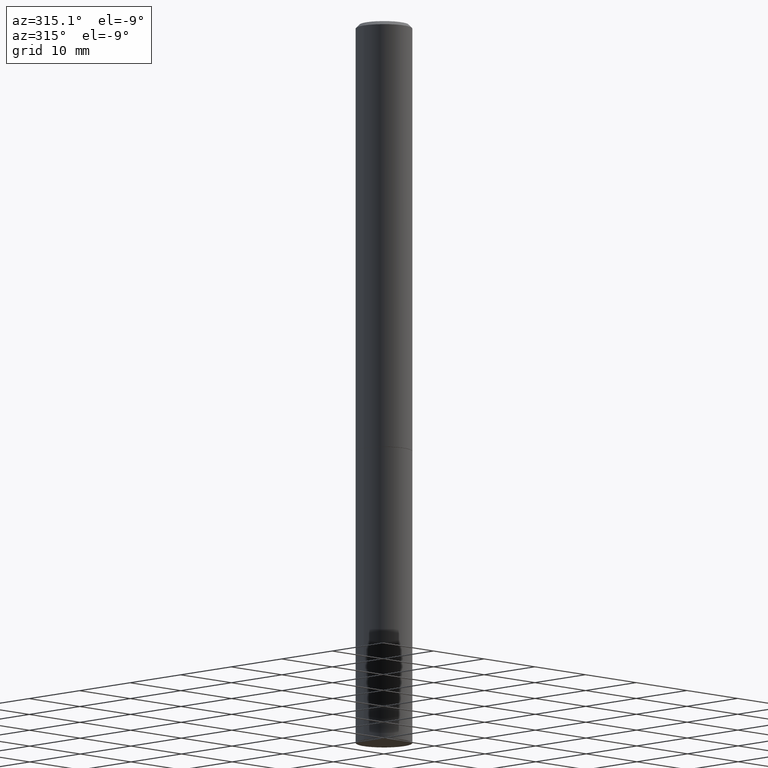
[diagram: clean part render]
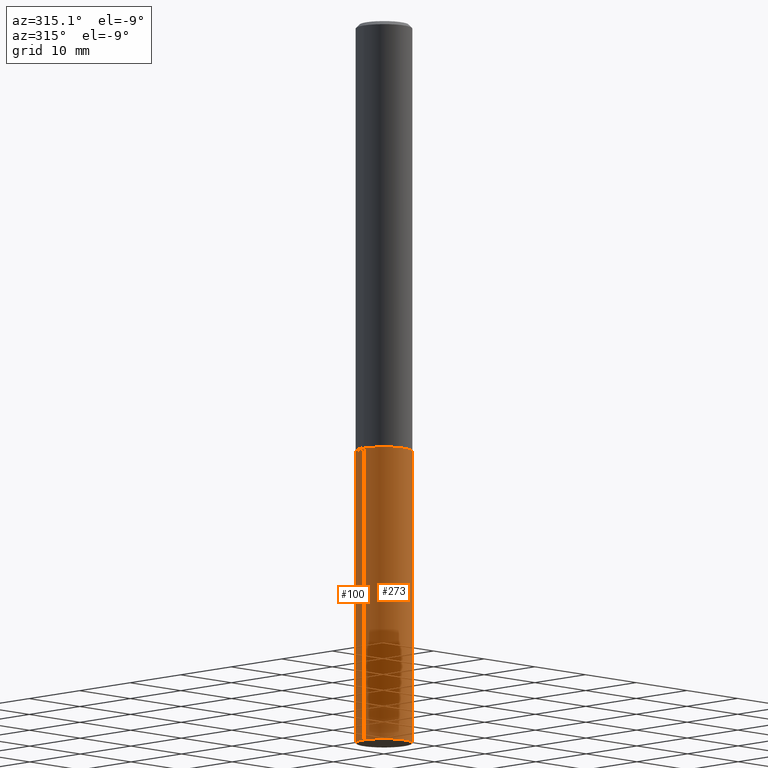
[diagram: same view with one multi-face feature highlighted, each face labeled with its STEP entity id]
A machine part, auxiliary view. The highlighted faces form ONE feature: a constant-radius fillet chain: 2 tangent blend faces with common blend radius 3.9688 mm. The faces share edges in the B-rep.
Their STEP definitions:
[1] entity #273 (Cylinder):
#19 = ORIENTED_EDGE ( 'NONE', *, *, #77, .T. ) ;
#22 = DIRECTION ( 'NONE',  ( 1.000000000000000000, -6.982962677686266711E-15, 4.876176775795936353E-29 ) ) ;
#30 = CARTESIAN_POINT ( 'NONE',  ( -0.1562500000000000000, 1.110223024625156540E-15, -7.685836078523291160E-30 ) ) ;
#41 = CARTESIAN_POINT ( 'NONE',  ( 0.000000000000000000, 0.000000000000000000, 0.000000000000000000 ) ) ;
#47 = DIRECTION ( 'NONE',  ( 1.000000000000000000, -6.982962677686262766E-15, 0.000000000000000000 ) ) ;
#67 = CARTESIAN_POINT ( 'NONE',  ( 0.1562499999999997224, -1.503787816752438098E-14, -4.000000000000000000 ) ) ;
#71 = VECTOR ( 'NONE', #167, 39.37007874015748143 ) ;
#77 = EDGE_CURVE ( 'NONE', #350, #175, #328, .T. ) ;
#79 = AXIS2_PLACEMENT_3D ( 'NONE', #112, #236, #47 ) ;
#82 = CARTESIAN_POINT ( 'NONE',  ( 9.781875224740546387E-29, -1.396592535537258233E-14, -4.000000000000000000 ) ) ;
#85 = AXIS2_PLACEMENT_3D ( 'NONE', #82, #347, #297 ) ;
#91 = CYLINDRICAL_SURFACE ( 'NONE', #129, 0.1562500000000000000 ) ;
#97 = ORIENTED_EDGE ( 'NONE', *, *, #345, .T. ) ;
#104 = ORIENTED_EDGE ( 'NONE', *, *, #381, .F. ) ;
#112 = CARTESIAN_POINT ( 'NONE',  ( 5.807988414689699417E-29, -8.292268179752470118E-15, -2.375000000000000000 ) ) ;
#113 = CARTESIAN_POINT ( 'NONE',  ( -0.1562500000000000000, -1.001887374293736968E-14, -2.375000000000000000 ) ) ;
#129 = AXIS2_PLACEMENT_3D ( 'NONE', #41, #166, #22 ) ;
#146 = DIRECTION ( 'NONE',  ( -2.445468806185136877E-29, 3.491481338843145188E-15, 1.000000000000000000 ) ) ;
#166 = DIRECTION ( 'NONE',  ( -2.445468806185136597E-29, 3.491481338843145583E-15, 1.000000000000000000 ) ) ;
#167 = DIRECTION ( 'NONE',  ( -2.445468806185136877E-29, 3.491481338843145188E-15, 1.000000000000000000 ) ) ;
#175 = VERTEX_POINT ( 'NONE', #67 ) ;
#200 = LINE ( 'NONE', #323, #71 ) ;
#206 = EDGE_CURVE ( 'NONE', #350, #367, #270, .T. ) ;
#215 = FACE_OUTER_BOUND ( 'NONE', #287, .T. ) ;
#236 = DIRECTION ( 'NONE',  ( -2.445468806185136597E-29, 3.491481338843145583E-15, 1.000000000000000000 ) ) ;
#262 = CARTESIAN_POINT ( 'NONE',  ( -0.1562499999999997224, -1.287483743698410395E-14, -4.000000000000000000 ) ) ;
#270 = LINE ( 'NONE', #30, #313 ) ;
#273 = ADVANCED_FACE ( 'NONE', ( #215 ), #91, .T. ) ;
#287 = EDGE_LOOP ( 'NONE', ( #319, #19, #97, #104 ) ) ;
#296 = CIRCLE ( 'NONE', #79, 0.1562500000000000000 ) ;
#297 = DIRECTION ( 'NONE',  ( 1.000000000000000000, -6.982962677686262766E-15, 0.000000000000000000 ) ) ;
#313 = VECTOR ( 'NONE', #146, 39.37007874015748143 ) ;
#319 = ORIENTED_EDGE ( 'NONE', *, *, #206, .F. ) ;
#323 = CARTESIAN_POINT ( 'NONE',  ( 0.1562500000000000000, -1.091087918388479174E-15, 7.619026212181150377E-30 ) ) ;
#328 = CIRCLE ( 'NONE', #85, 0.1562500000000000000 ) ;
#345 = EDGE_CURVE ( 'NONE', #175, #351, #200, .T. ) ;
#347 = DIRECTION ( 'NONE',  ( -2.445468806185136597E-29, 3.491481338843145583E-15, 1.000000000000000000 ) ) ;
#350 = VERTEX_POINT ( 'NONE', #262 ) ;
#351 = VERTEX_POINT ( 'NONE', #361 ) ;
#361 = CARTESIAN_POINT ( 'NONE',  ( 0.1562500000000000000, -9.383356098140948502E-15, -2.375000000000000000 ) ) ;
#367 = VERTEX_POINT ( 'NONE', #113 ) ;
#381 = EDGE_CURVE ( 'NONE', #367, #351, #296, .T. ) ;
[2] entity #100 (Cylinder):
#16 = DIRECTION ( 'NONE',  ( -2.445468806185136597E-29, 3.491481338843145583E-15, 1.000000000000000000 ) ) ;
#30 = CARTESIAN_POINT ( 'NONE',  ( -0.1562500000000000000, 1.110223024625156540E-15, -7.685836078523291160E-30 ) ) ;
#67 = CARTESIAN_POINT ( 'NONE',  ( 0.1562499999999997224, -1.503787816752438098E-14, -4.000000000000000000 ) ) ;
#71 = VECTOR ( 'NONE', #167, 39.37007874015748143 ) ;
#72 = CARTESIAN_POINT ( 'NONE',  ( 5.807988414689699417E-29, -8.292268179752470118E-15, -2.375000000000000000 ) ) ;
#78 = DIRECTION ( 'NONE',  ( 1.000000000000000000, -6.982962677686262766E-15, 0.000000000000000000 ) ) ;
#80 = FACE_OUTER_BOUND ( 'NONE', #94, .T. ) ;
#89 = ORIENTED_EDGE ( 'NONE', *, *, #281, .F. ) ;
#92 = CIRCLE ( 'NONE', #183, 0.1562500000000000000 ) ;
#94 = EDGE_LOOP ( 'NONE', ( #301, #279, #89, #147 ) ) ;
#99 = DIRECTION ( 'NONE',  ( 1.000000000000000000, -6.982962677686266711E-15, 4.876176775795936353E-29 ) ) ;
#100 = ADVANCED_FACE ( 'NONE', ( #80 ), #199, .T. ) ;
#113 = CARTESIAN_POINT ( 'NONE',  ( -0.1562500000000000000, -1.001887374293736968E-14, -2.375000000000000000 ) ) ;
#121 = DIRECTION ( 'NONE',  ( 1.000000000000000000, -6.982962677686262766E-15, 0.000000000000000000 ) ) ;
#146 = DIRECTION ( 'NONE',  ( -2.445468806185136877E-29, 3.491481338843145188E-15, 1.000000000000000000 ) ) ;
#147 = ORIENTED_EDGE ( 'NONE', *, *, #345, .F. ) ;
#150 = CIRCLE ( 'NONE', #205, 0.1562500000000000000 ) ;
#152 = DIRECTION ( 'NONE',  ( -2.445468806185136597E-29, 3.491481338843145583E-15, 1.000000000000000000 ) ) ;
#163 = CARTESIAN_POINT ( 'NONE',  ( 9.781875224740546387E-29, -1.396592535537258233E-14, -4.000000000000000000 ) ) ;
#167 = DIRECTION ( 'NONE',  ( -2.445468806185136877E-29, 3.491481338843145188E-15, 1.000000000000000000 ) ) ;
#175 = VERTEX_POINT ( 'NONE', #67 ) ;
#183 = AXIS2_PLACEMENT_3D ( 'NONE', #163, #16, #78 ) ;
#190 = DIRECTION ( 'NONE',  ( -2.445468806185136597E-29, 3.491481338843145583E-15, 1.000000000000000000 ) ) ;
#194 = CARTESIAN_POINT ( 'NONE',  ( 0.000000000000000000, 0.000000000000000000, 0.000000000000000000 ) ) ;
#199 = CYLINDRICAL_SURFACE ( 'NONE', #331, 0.1562500000000000000 ) ;
#200 = LINE ( 'NONE', #323, #71 ) ;
#205 = AXIS2_PLACEMENT_3D ( 'NONE', #72, #190, #121 ) ;
#206 = EDGE_CURVE ( 'NONE', #350, #367, #270, .T. ) ;
#233 = EDGE_CURVE ( 'NONE', #175, #350, #92, .T. ) ;
#262 = CARTESIAN_POINT ( 'NONE',  ( -0.1562499999999997224, -1.287483743698410395E-14, -4.000000000000000000 ) ) ;
#270 = LINE ( 'NONE', #30, #313 ) ;
#279 = ORIENTED_EDGE ( 'NONE', *, *, #206, .T. ) ;
#281 = EDGE_CURVE ( 'NONE', #351, #367, #150, .T. ) ;
#301 = ORIENTED_EDGE ( 'NONE', *, *, #233, .T. ) ;
#313 = VECTOR ( 'NONE', #146, 39.37007874015748143 ) ;
#323 = CARTESIAN_POINT ( 'NONE',  ( 0.1562500000000000000, -1.091087918388479174E-15, 7.619026212181150377E-30 ) ) ;
#331 = AXIS2_PLACEMENT_3D ( 'NONE', #194, #152, #99 ) ;
#345 = EDGE_CURVE ( 'NONE', #175, #351, #200, .T. ) ;
#350 = VERTEX_POINT ( 'NONE', #262 ) ;
#351 = VERTEX_POINT ( 'NONE', #361 ) ;
#361 = CARTESIAN_POINT ( 'NONE',  ( 0.1562500000000000000, -9.383356098140948502E-15, -2.375000000000000000 ) ) ;
#367 = VERTEX_POINT ( 'NONE', #113 ) ;